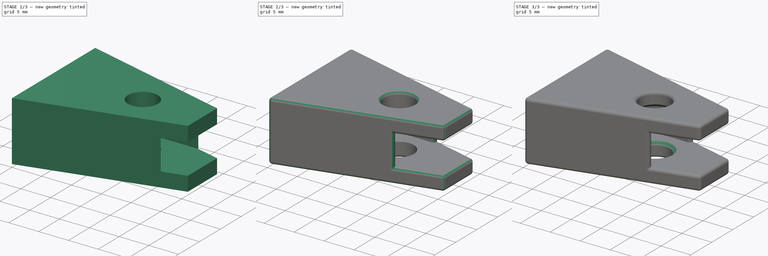
[diagram: build sequence overview — one tinted view per stage of 3, left to right]
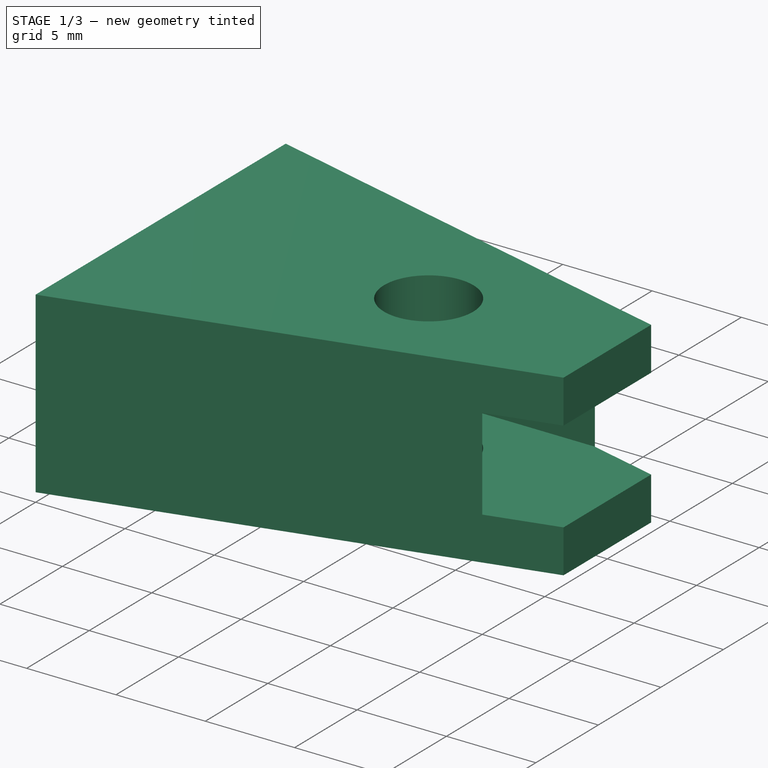
[diagram: stage 1 of 3 — iso view after this stage's code; geometry added in this stage tinted green]
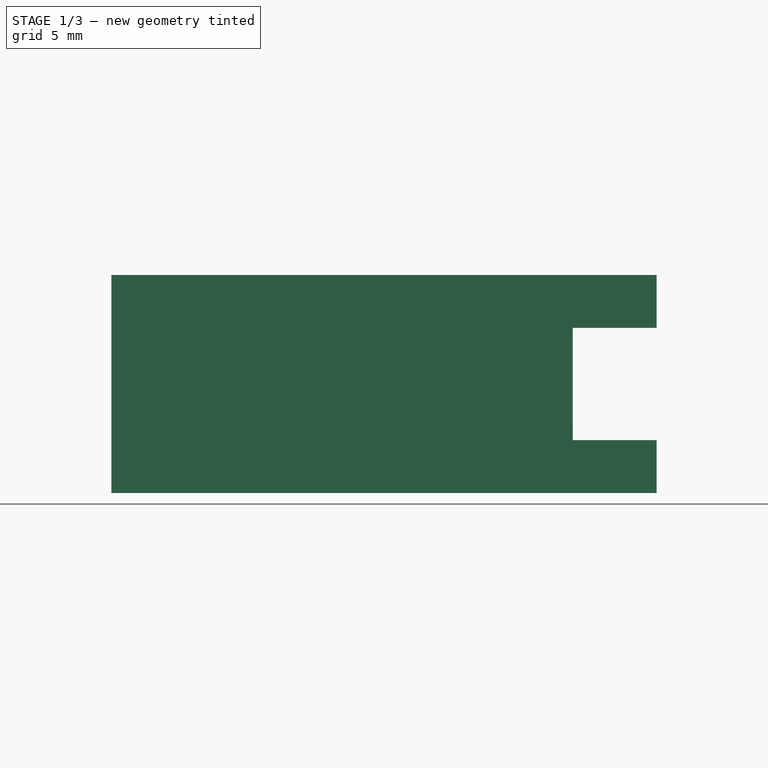
[diagram: stage 1 of 3 — front view after this stage's code; geometry added in this stage tinted green]
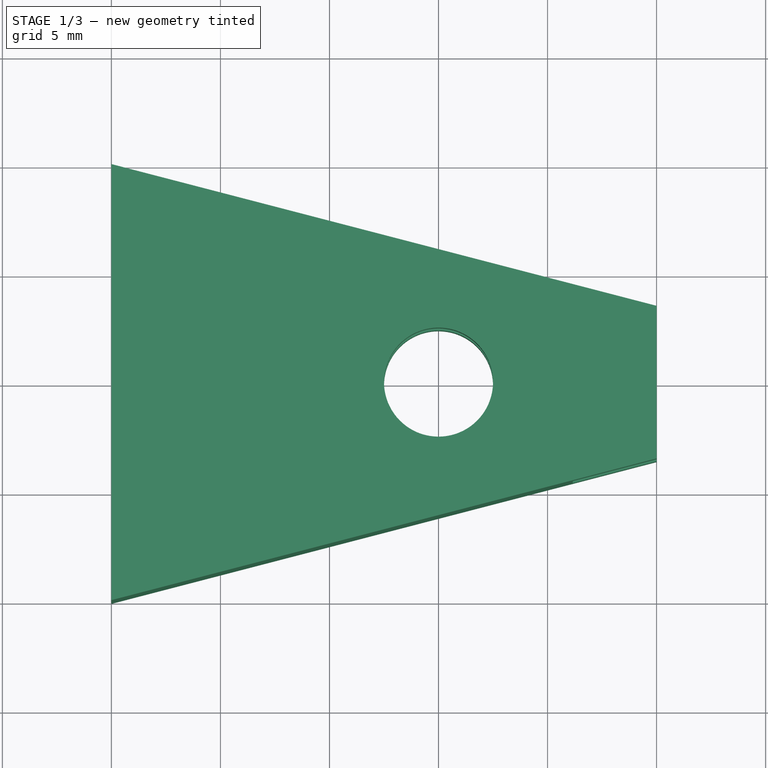
[diagram: stage 1 of 3 — top view after this stage's code; geometry added in this stage tinted green]
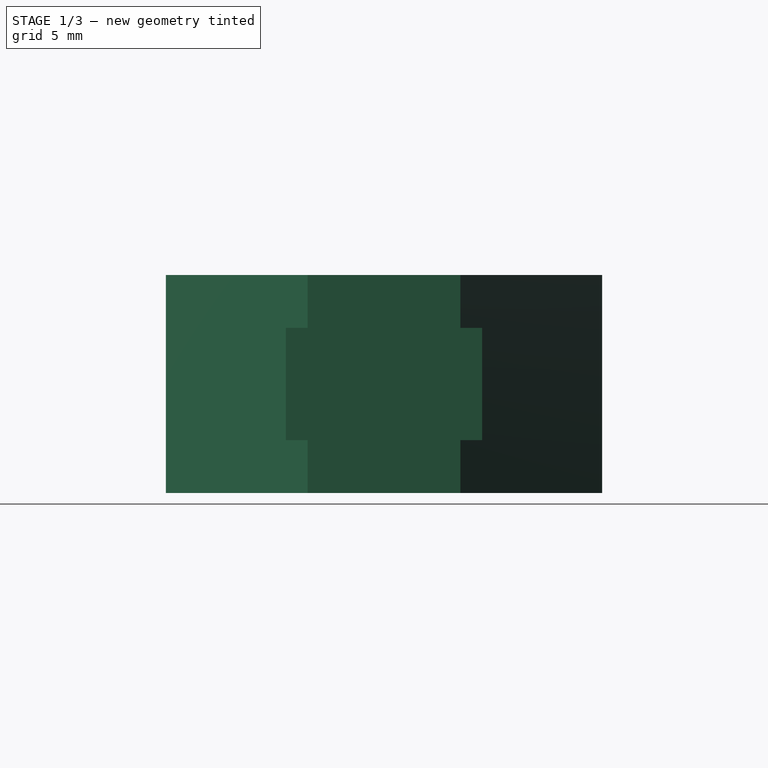
[diagram: stage 1 of 3 — right view after this stage's code; geometry added in this stage tinted green]
FCSTD DOCUMENT  (FreeCAD 0.17R13541 (Git))
Label: fastener_foam_rubber
License: All rights reserved
LicenseURL: http://en.wikipedia.org/wiki/All_rights_reserved
objects: Sketcher::SketchObject×2, PartDesign::Fillet×2, PartDesign::Pad×1, PartDesign::Pocket×1, PartDesign::Chamfer×1, PartDesign::Body×1
note: 10 computed .brp shape members not serialized (recipe doc carries the construction recipe); baked Part::Feature solids carry a one-line shape summary decoded from their .brp

FEATURE [Sketcher::SketchObject] Sketch
  MapMode = 5
  Support = -> [XY_Plane001]
  sketch-geometry (5):
    g0: Circle CenterX=0 CenterY=0 CenterZ=0 NormalX=0 NormalY=0 NormalZ=1 AngleXU=0 Radius=2.5
    g1: LineSegment StartX=-15 StartY=10 StartZ=0 EndX=-15 EndY=-10 EndZ=0
    g2: LineSegment StartX=-15 StartY=-10 StartZ=0 EndX=10 EndY=-3.5 EndZ=0
    g3: LineSegment StartX=10 StartY=-3.5 StartZ=0 EndX=10 EndY=3.5 EndZ=0
    g4: LineSegment StartX=10 StartY=3.5 StartZ=0 EndX=-15 EndY=10 EndZ=0
  constraints (14):
    c: Coincident(g0,g-1)
    c: Radius(g0) = 2.5
    c: Vertical(g1)
    c: Coincident(g1,g2)
    c: Coincident(g2,g3)
    c: Vertical(g3)
    c: Coincident(g3,g4)
    c: Coincident(g4,g1)
    c: DistanceX(g1,g3) = 25
    c: DistanceX(g-1,g3) = 10
    c: DistanceY(g3,g3) = 7
    c: DistanceY(g1,g1) = 20
    c: DistanceY(g-1,g1) = 10
    c: DistanceY(g-1,g3) = 3.5
FEATURE [PartDesign::Pad] Pad
  Length = 10
  Length2 = 100
  Profile = -> Sketch
  Refine = true
  Type = 0
FEATURE [Sketcher::SketchObject] Sketch001
  MapMode = 5
  Placement = pos=(10,0,0) rot=(0.57735,0.57735,0.57735;2.0944rad)
  Support = -> [Pad]
  sketch-geometry (4):
    g0: LineSegment StartX=-4.5 StartY=7.575 StartZ=0 EndX=4.5 EndY=7.575 EndZ=0
    g1: LineSegment StartX=4.5 StartY=7.575 StartZ=0 EndX=4.5 EndY=2.425 EndZ=0
    g2: LineSegment StartX=4.5 StartY=2.425 StartZ=0 EndX=-4.5 EndY=2.425 EndZ=0
    g3: LineSegment StartX=-4.5 StartY=2.425 StartZ=0 EndX=-4.5 EndY=7.575 EndZ=0
  constraints (12):
    c: Coincident(g0,g1)
    c: Coincident(g1,g2)
    c: Coincident(g2,g3)
    c: Coincident(g3,g0)
    c: Horizontal(g0)
    c: Horizontal(g2)
    c: Vertical(g1)
    c: Vertical(g3)
    c: DistanceY(g1,g1) = 5.15
    c: DistanceY(g-1,g1) = 2.425
    c: DistanceX(g0,g0) = 9
    c: DistanceX(g2,g-1) = 4.5
FEATURE [PartDesign::Pocket] Pocket
  BaseFeature = -> Pad
  Length = 16
  Length2 = 100
  Profile = -> Sketch001
  Refine = true
  Type = 0
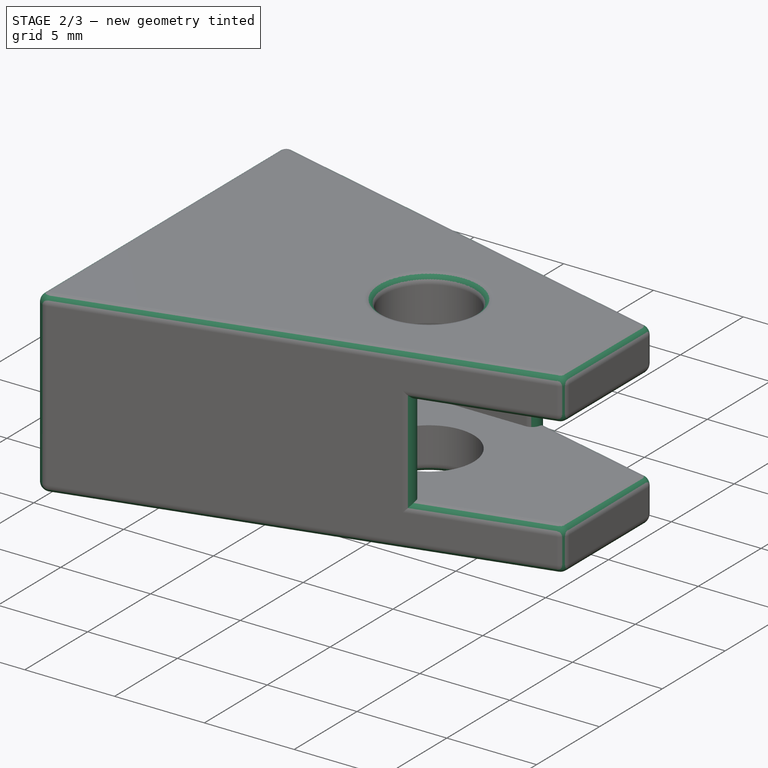
[diagram: stage 2 of 3 — iso view after this stage's code; geometry added in this stage tinted green]
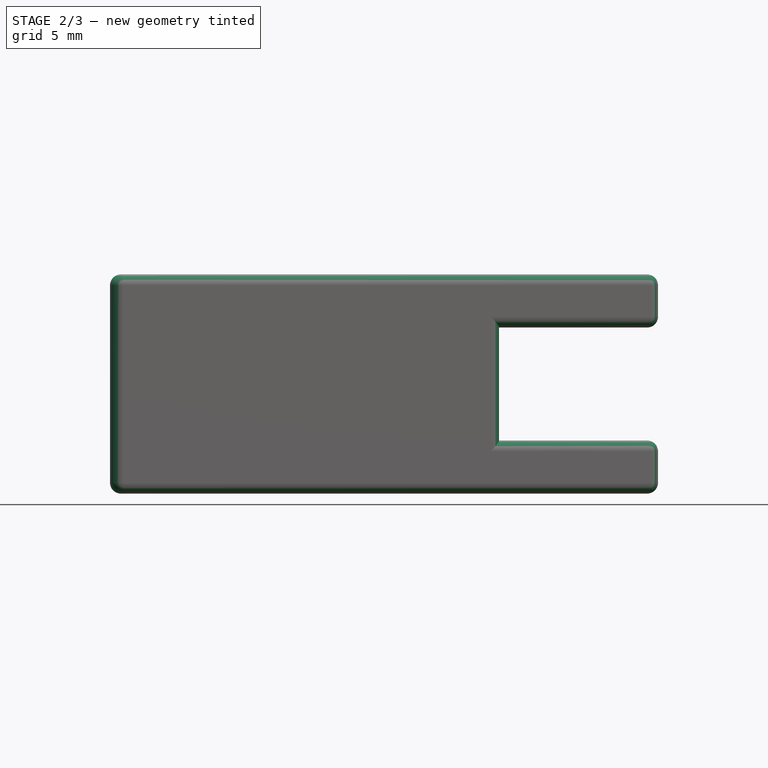
[diagram: stage 2 of 3 — front view after this stage's code; geometry added in this stage tinted green]
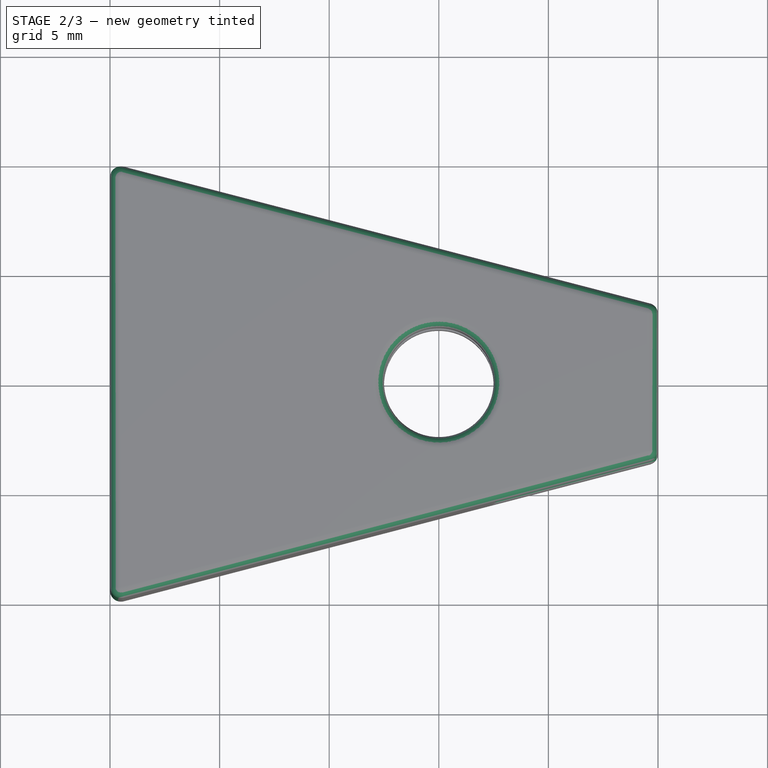
[diagram: stage 2 of 3 — top view after this stage's code; geometry added in this stage tinted green]
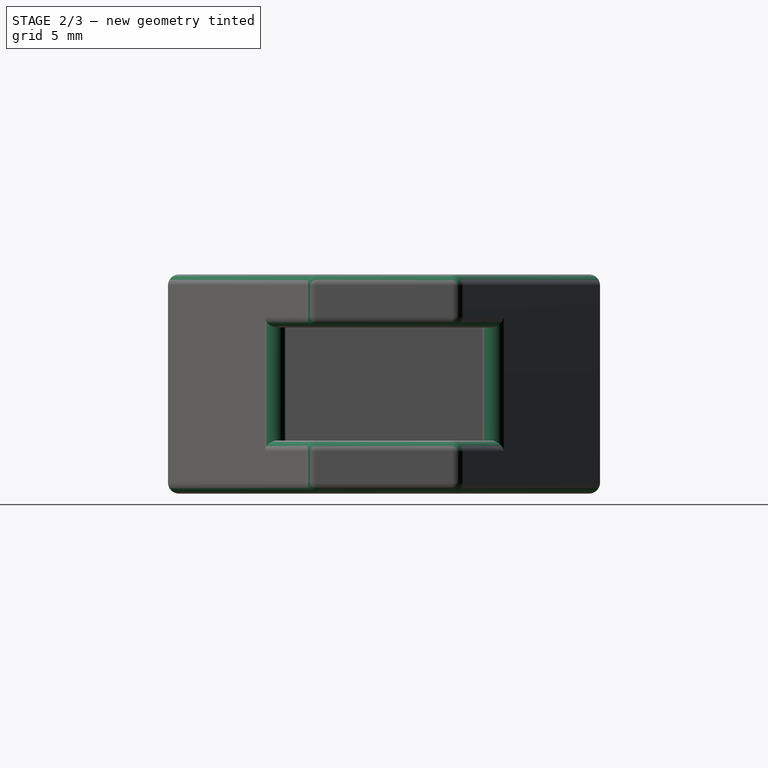
[diagram: stage 2 of 3 — right view after this stage's code; geometry added in this stage tinted green]
FEATURE [PartDesign::Fillet] Fillet
  Base = -> Pocket [Face2,Face4,Face1,Face3,Face5,Face6,Face10]
  BaseFeature = -> Pocket
  Radius = 0.5
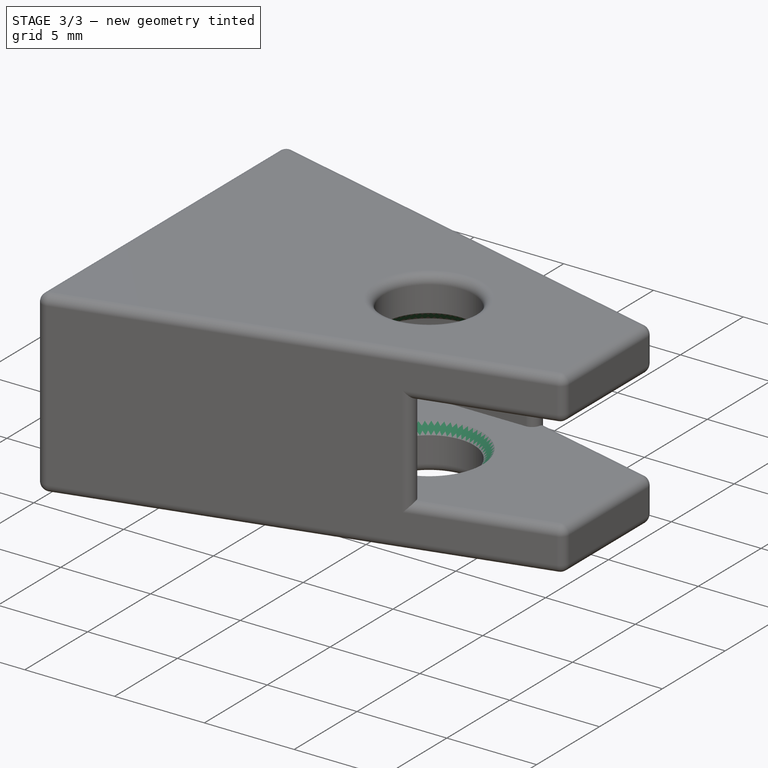
[diagram: stage 3 of 3 — iso view after this stage's code; geometry added in this stage tinted green]
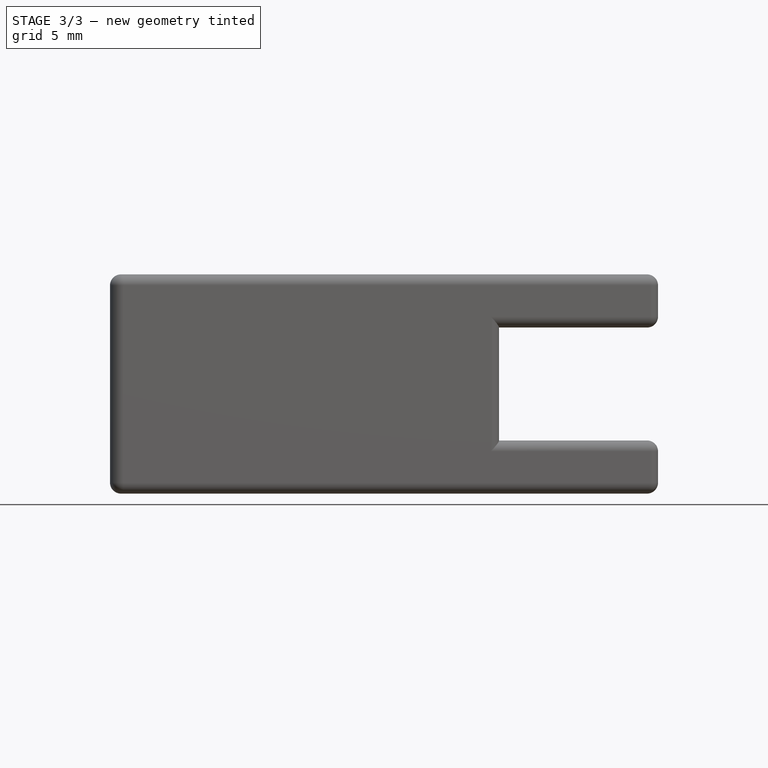
[diagram: stage 3 of 3 — front view after this stage's code; geometry added in this stage tinted green]
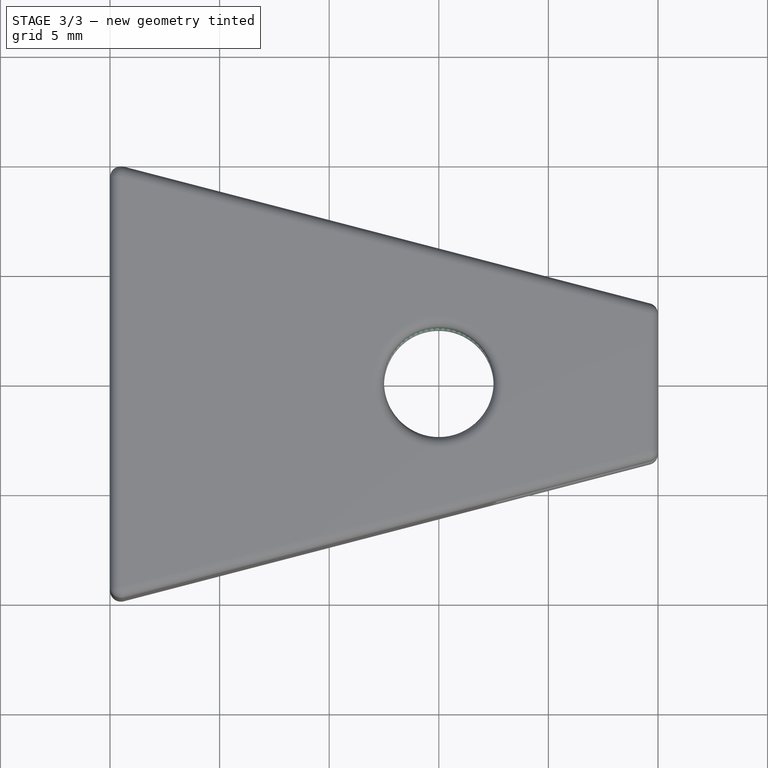
[diagram: stage 3 of 3 — top view after this stage's code; geometry added in this stage tinted green]
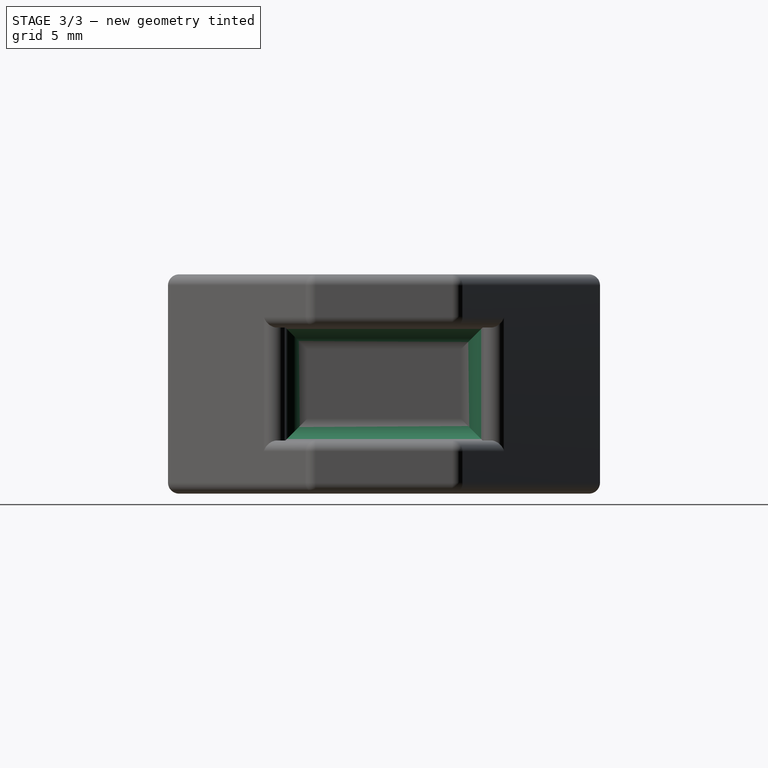
[diagram: stage 3 of 3 — right view after this stage's code; geometry added in this stage tinted green]
FEATURE [PartDesign::Fillet] Fillet001
  Base = -> Fillet [Face49]
  BaseFeature = -> Fillet
  Radius = 1
FEATURE [PartDesign::Chamfer] Chamfer
  Base = -> Fillet001 [Edge40,Edge9]
  BaseFeature = -> Fillet001
  Size = 0.5
FEATURE [PartDesign::Body] Body
  Group = -> [Sketch,Pad,Sketch001,Pocket,Fillet,Fillet001,Chamfer]
  Origin = -> Origin001
  Tip = -> Fillet001
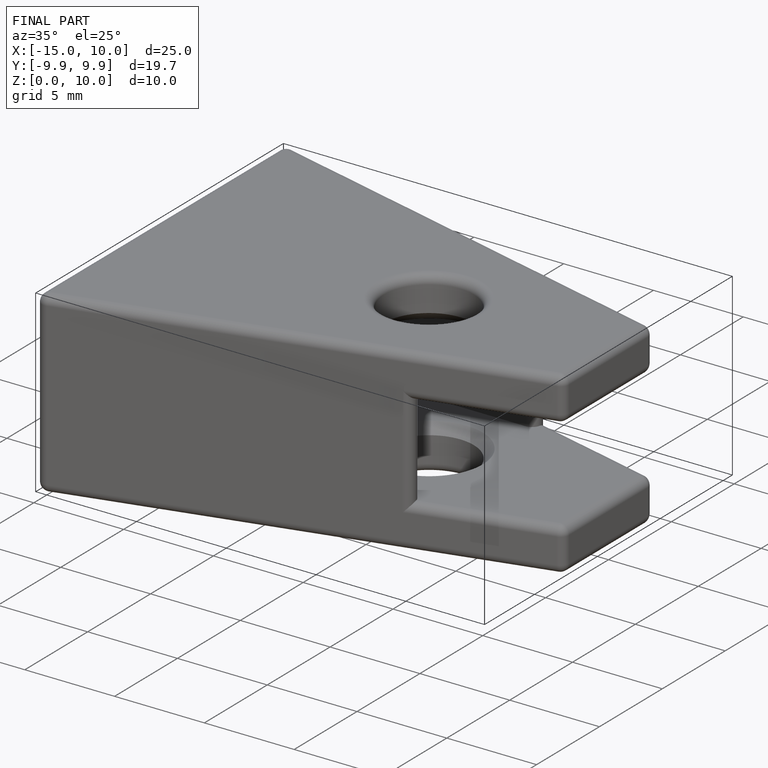
[diagram: finished part — iso view with bounding-box wireframe]
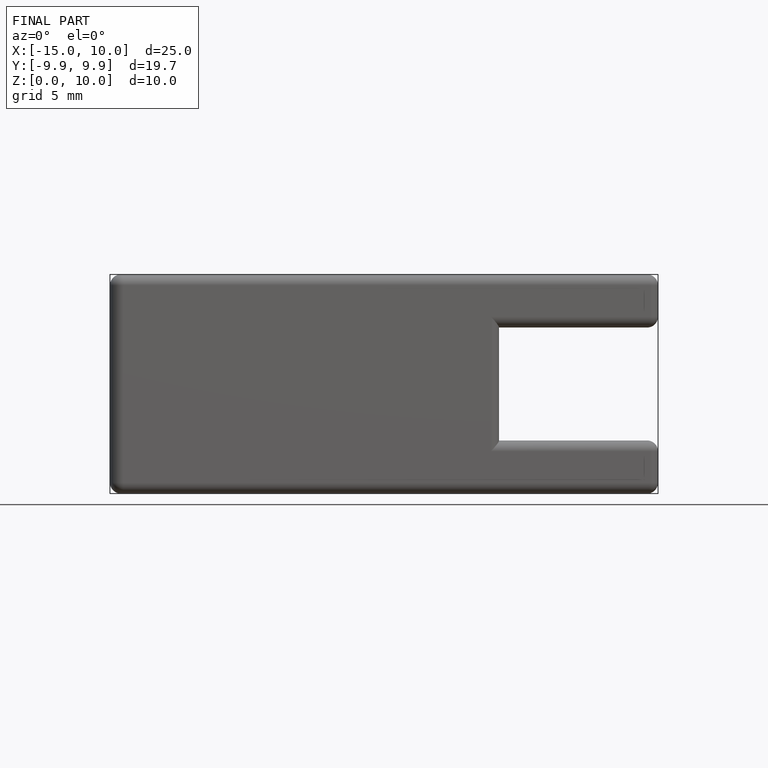
[diagram: finished part — front view with bounding-box wireframe]
